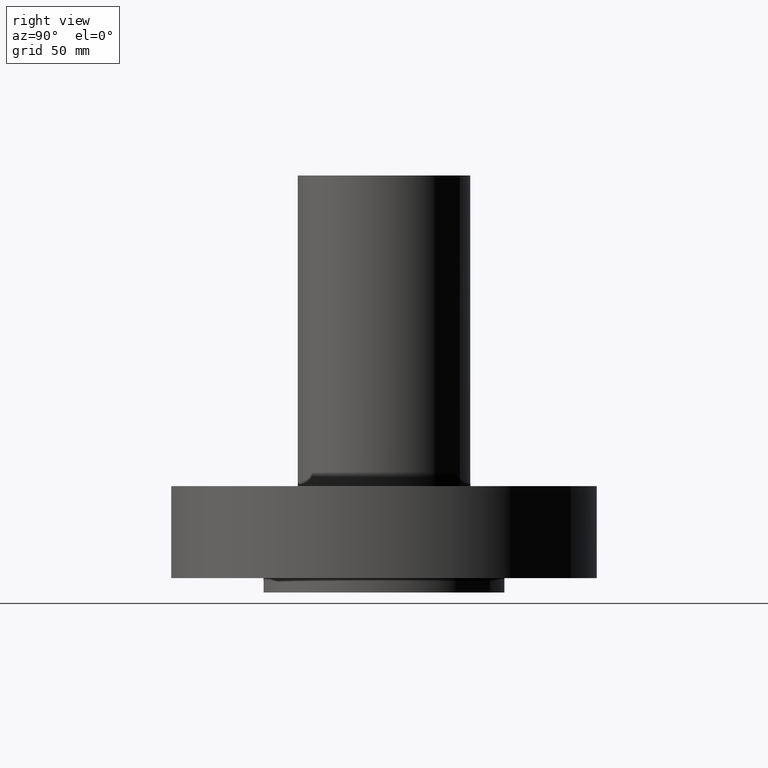
[diagram: clean part render]
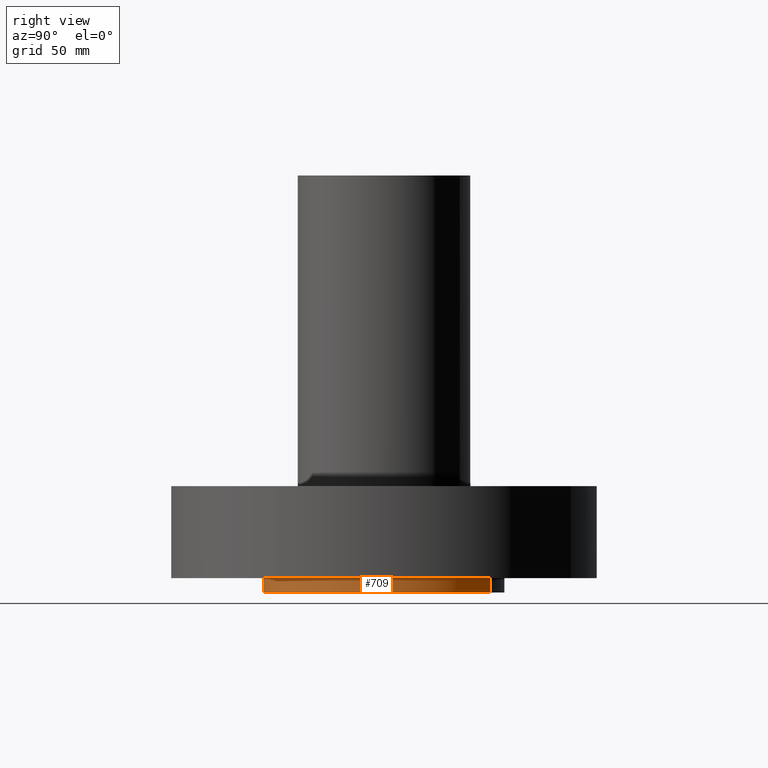
[diagram: same view with one face highlighted and labeled with its STEP entity id]
A machine part, right view. The second image highlights one B-rep face of the part: STEP entity #709.
In plain terms, the highlighted cylindrical surface (partial cylindrical patch) has radius 66.675 mm, axis along (0, 0, -1).
Its self-contained STEP definition (entity closure, byte-faithful):
#109=AXIS2_PLACEMENT_3D('Circle Axis2P3D',#107,#108,$) ;
#669=AXIS2_PLACEMENT_3D('Circle Axis2P3D',#667,#668,$) ;
#684=AXIS2_PLACEMENT_3D('Cylinder Axis2P3D',#681,#682,#683) ;
#107=CARTESIAN_POINT('Axis2P3D Location',(0.,0.,0.)) ;
#111=CARTESIAN_POINT('Vertex',(1.25849203884,2.30365422497,5.59482469102E-016)) ;
#113=CARTESIAN_POINT('Vertex',(-1.25849203884,-2.30365422497,5.59482469102E-016)) ;
#662=CARTESIAN_POINT('Vertex',(-1.25849203884,-2.30365422497,-0.313000000001)) ;
#664=CARTESIAN_POINT('Vertex',(1.25849203884,2.30365422497,-0.313000000001)) ;
#667=CARTESIAN_POINT('Axis2P3D Location',(0.,0.,-0.313000000001)) ;
#681=CARTESIAN_POINT('Axis2P3D Location',(0.,0.,4.21850000002)) ;
#686=CARTESIAN_POINT('Line Origine',(-1.25849203884,-2.30365422497,-0.156500000001)) ;
#691=CARTESIAN_POINT('Line Origine',(1.25849203884,2.30365422497,-0.156500000001)) ;
#108=DIRECTION('Axis2P3D Direction',(0.,0.,-0.0393700787402)) ;
#668=DIRECTION('Axis2P3D Direction',(0.,0.,-0.0393700787402)) ;
#682=DIRECTION('Axis2P3D Direction',(0.,0.,-0.0393700787402)) ;
#683=DIRECTION('Axis2P3D XDirection',(0.0188750212049,0.0345504945626,0.)) ;
#687=DIRECTION('Vector Direction',(0.,0.,-0.0393700787402)) ;
#692=DIRECTION('Vector Direction',(0.,0.,-0.0393700787402)) ;
#688=VECTOR('Line Direction',#687,0.0393700787402) ;
#693=VECTOR('Line Direction',#692,0.0393700787402) ;
#704=ORIENTED_EDGE('',*,*,#671,.F.) ;
#705=ORIENTED_EDGE('',*,*,#695,.T.) ;
#706=ORIENTED_EDGE('',*,*,#115,.T.) ;
#707=ORIENTED_EDGE('',*,*,#690,.F.) ;
#709=ADVANCED_FACE('PartBody',(#708),#685,.T.) ;
#110=CIRCLE('generated circle',#109,2.62500000001) ;
#670=CIRCLE('generated circle',#669,2.62500000001) ;
#685=CYLINDRICAL_SURFACE('generated cylinder',#684,2.62500000001) ;
#115=EDGE_CURVE('',#112,#114,#110,.T.) ;
#671=EDGE_CURVE('',#665,#663,#670,.T.) ;
#690=EDGE_CURVE('',#663,#114,#689,.F.) ;
#695=EDGE_CURVE('',#665,#112,#694,.F.) ;
#703=EDGE_LOOP('',(#704,#705,#706,#707)) ;
#708=FACE_OUTER_BOUND('',#703,.T.) ;
#689=LINE('Line',#686,#688) ;
#694=LINE('Line',#691,#693) ;
#112=VERTEX_POINT('',#111) ;
#114=VERTEX_POINT('',#113) ;
#663=VERTEX_POINT('',#662) ;
#665=VERTEX_POINT('',#664) ;